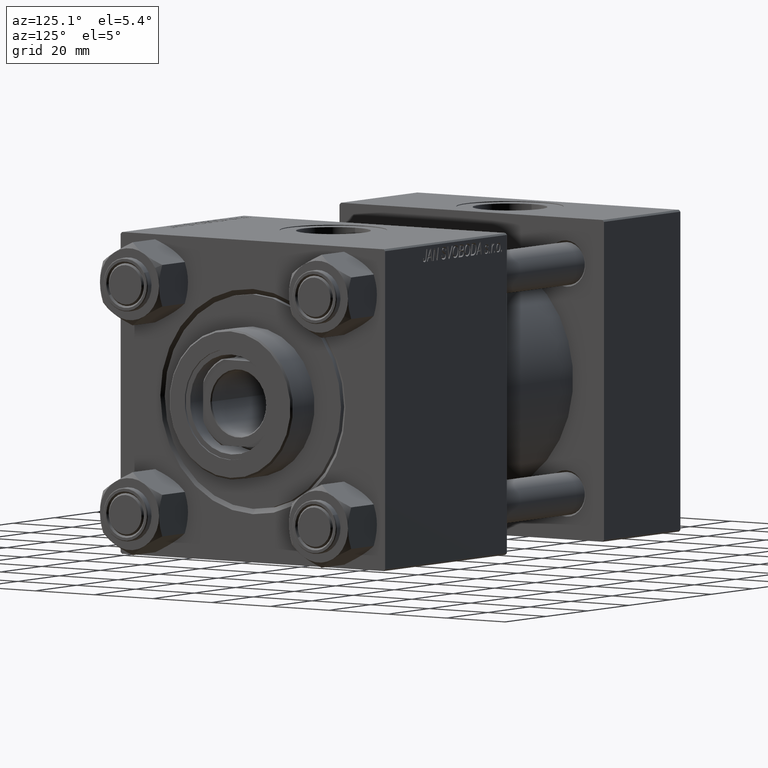
[diagram: clean part render]
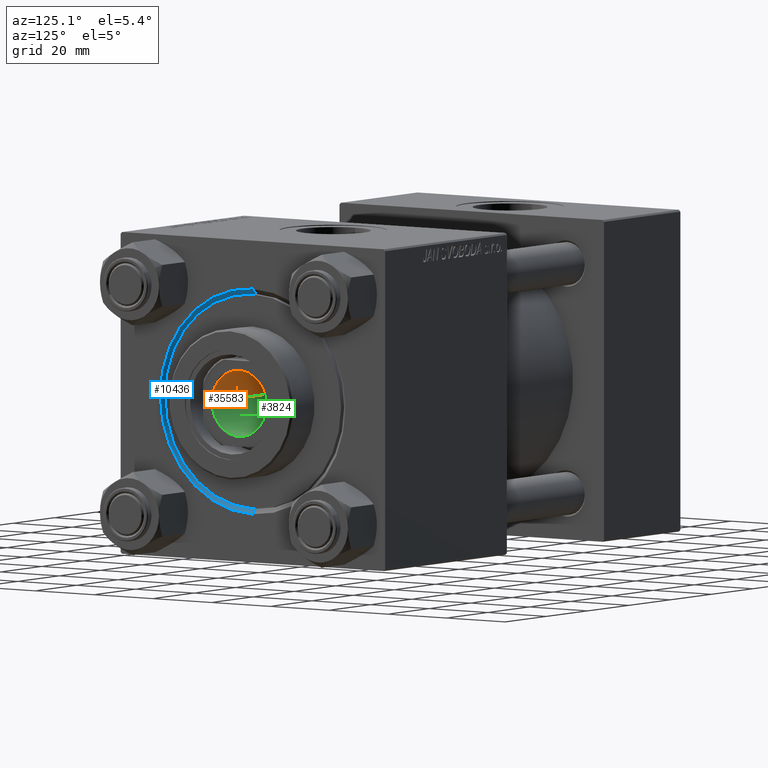
[diagram: same view with three faces highlighted in distinct colors, each labeled with its STEP entity id]
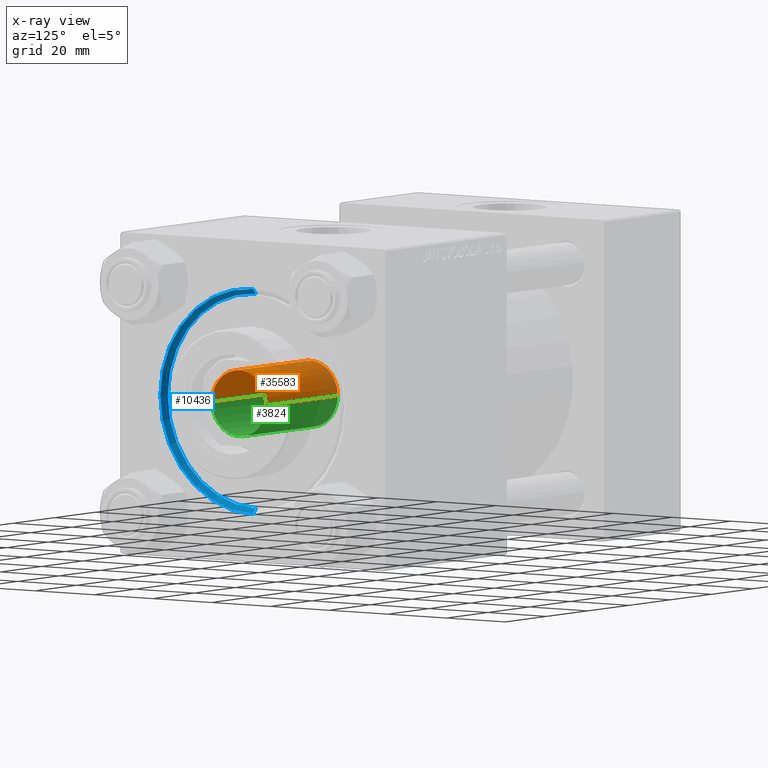
[diagram: x-ray of the same camera — body ghosted, the three highlighted faces saturated]
A machine part, auxiliary view with three faces highlighted in distinct colors.
The next image is the same camera in x-ray (body ghosted, the three faces saturated) — at least one of them is partly hidden behind the body in this view.
Their STEP definitions:

[orange] entity #35583 — the highlighted cylindrical surface (edge-blend (fillet) strip) has radius 9.25 mm, axis along (1, 0, -0).
#1181 = VERTEX_POINT ( 'NONE', #45784 ) ;
#1332 = ORIENTED_EDGE ( 'NONE', *, *, #35983, .F. ) ;
#2836 = CARTESIAN_POINT ( 'NONE',  ( 0.000000000000000000, 0.000000000000000000, 112.6999999999999744 ) ) ;
#5698 = CARTESIAN_POINT ( 'NONE',  ( 0.000000000000000000, 0.000000000000000000, 77.99999999999998579 ) ) ;
#5701 = DIRECTION ( 'NONE',  ( -0.000000000000000000, -0.000000000000000000, 1.000000000000000000 ) ) ;
#6137 = CARTESIAN_POINT ( 'NONE',  ( 9.249999999999994671, 0.000000000000000000, 112.6999999999999744 ) ) ;
#7879 = DIRECTION ( 'NONE',  ( -0.000000000000000000, -0.000000000000000000, 1.000000000000000000 ) ) ;
#9088 = EDGE_CURVE ( 'NONE', #21935, #1181, #28899, .T. ) ;
#9360 = ORIENTED_EDGE ( 'NONE', *, *, #9088, .T. ) ;
#10471 = AXIS2_PLACEMENT_3D ( 'NONE', #18603, #37486, #18098 ) ;
#18098 = DIRECTION ( 'NONE',  ( 1.000000000000000000, 0.000000000000000000, 0.000000000000000000 ) ) ;
#18186 = DIRECTION ( 'NONE',  ( 0.000000000000000000, 0.000000000000000000, 1.000000000000000000 ) ) ;
#18603 = CARTESIAN_POINT ( 'NONE',  ( 0.000000000000000000, 0.000000000000000000, 112.9999999999999858 ) ) ;
#19124 = CARTESIAN_POINT ( 'NONE',  ( -9.249999999999992895, 1.132798289211300712E-15, 77.99999999999998579 ) ) ;
#21067 = DIRECTION ( 'NONE',  ( 1.000000000000000000, 0.000000000000000000, 0.000000000000000000 ) ) ;
#21935 = VERTEX_POINT ( 'NONE', #19124 ) ;
#22135 = CYLINDRICAL_SURFACE ( 'NONE', #10471, 9.249999999999994671 ) ;
#24897 = VERTEX_POINT ( 'NONE', #42052 ) ;
#24899 = CIRCLE ( 'NONE', #47365, 9.249999999999992895 ) ;
#25926 = FACE_OUTER_BOUND ( 'NONE', #45438, .T. ) ;
#28329 = EDGE_CURVE ( 'NONE', #21935, #24897, #24899, .T. ) ;
#28899 = LINE ( 'NONE', #40196, #29668 ) ;
#29668 = VECTOR ( 'NONE', #5701, 1000.000000000000000 ) ;
#35465 = VECTOR ( 'NONE', #7879, 1000.000000000000000 ) ;
#35583 = ADVANCED_FACE ( 'NONE', ( #25926 ), #22135, .F. ) ;
#35983 = EDGE_CURVE ( 'NONE', #24897, #48921, #39351, .T. ) ;
#36480 = CIRCLE ( 'NONE', #39685, 9.249999999999994671 ) ;
#37089 = DIRECTION ( 'NONE',  ( 1.000000000000000000, 0.000000000000000000, 0.000000000000000000 ) ) ;
#37486 = DIRECTION ( 'NONE',  ( -0.000000000000000000, -0.000000000000000000, 1.000000000000000000 ) ) ;
#39351 = LINE ( 'NONE', #43373, #35465 ) ;
#39685 = AXIS2_PLACEMENT_3D ( 'NONE', #2836, #18186, #37089 ) ;
#40196 = CARTESIAN_POINT ( 'NONE',  ( -9.249999999999994671, 1.132798289211300909E-15, 112.9999999999999858 ) ) ;
#40213 = ORIENTED_EDGE ( 'NONE', *, *, #28329, .F. ) ;
#42052 = CARTESIAN_POINT ( 'NONE',  ( 9.249999999999992895, 0.000000000000000000, 77.99999999999998579 ) ) ;
#43373 = CARTESIAN_POINT ( 'NONE',  ( 9.249999999999994671, 0.000000000000000000, 112.9999999999999858 ) ) ;
#45438 = EDGE_LOOP ( 'NONE', ( #40213, #9360, #46821, #1332 ) ) ;
#45784 = CARTESIAN_POINT ( 'NONE',  ( -9.249999999999994671, 1.132798289211300909E-15, 112.6999999999999744 ) ) ;
#46821 = ORIENTED_EDGE ( 'NONE', *, *, #47106, .T. ) ;
#47106 = EDGE_CURVE ( 'NONE', #1181, #48921, #36480, .T. ) ;
#47365 = AXIS2_PLACEMENT_3D ( 'NONE', #5698, #47495, #21067 ) ;
#47495 = DIRECTION ( 'NONE',  ( -0.000000000000000000, -0.000000000000000000, 1.000000000000000000 ) ) ;
#48921 = VERTEX_POINT ( 'NONE', #6137 ) ;

[blue] entity #10436 — the highlighted conical surface has half-angle 45 deg.
#322 = ORIENTED_EDGE ( 'NONE', *, *, #4320, .F. ) ;
#326 = DIRECTION ( 'NONE',  ( 0.7071067811865474617, 0.000000000000000000, -0.7071067811865474617 ) ) ;
#386 = DIRECTION ( 'NONE',  ( 0.000000000000000000, 0.000000000000000000, 1.000000000000000000 ) ) ;
#852 = AXIS2_PLACEMENT_3D ( 'NONE', #3563, #22448, #6836 ) ;
#1330 = CIRCLE ( 'NONE', #34292, 31.50000000000000000 ) ;
#3563 = CARTESIAN_POINT ( 'NONE',  ( 141.5000000000000000, 0.000000000000000000, 0.000000000000000000 ) ) ;
#3663 = VERTEX_POINT ( 'NONE', #12004 ) ;
#3919 = CARTESIAN_POINT ( 'NONE',  ( 143.0000000000000000, 0.000000000000000000, 0.000000000000000000 ) ) ;
#4320 = EDGE_CURVE ( 'NONE', #39840, #40298, #31305, .T. ) ;
#6836 = DIRECTION ( 'NONE',  ( 0.000000000000000000, 0.000000000000000000, 1.000000000000000000 ) ) ;
#7197 = ORIENTED_EDGE ( 'NONE', *, *, #31450, .T. ) ;
#10120 = CARTESIAN_POINT ( 'NONE',  ( 141.5000000000000000, 3.673940397442059178E-15, 30.00000000000000000 ) ) ;
#10139 = VECTOR ( 'NONE', #326, 1000.000000000000114 ) ;
#10436 = ADVANCED_FACE ( 'NONE', ( #19723 ), #16795, .F. ) ;
#11699 = DIRECTION ( 'NONE',  ( -1.000000000000000000, -0.000000000000000000, -0.000000000000000000 ) ) ;
#12004 = CARTESIAN_POINT ( 'NONE',  ( 143.0000000000000000, 3.857637417314162689E-15, 31.50000000000000000 ) ) ;
#14509 = DIRECTION ( 'NONE',  ( 0.000000000000000000, 0.000000000000000000, -1.000000000000000000 ) ) ;
#16033 = EDGE_LOOP ( 'NONE', ( #47933, #7197, #31126, #322 ) ) ;
#16795 = CONICAL_SURFACE ( 'NONE', #26450, 30.00000000000000000, 0.7853981633974482790 ) ;
#18996 = CARTESIAN_POINT ( 'NONE',  ( 141.5000000000000000, 0.000000000000000000, -30.00000000000000000 ) ) ;
#19723 = FACE_OUTER_BOUND ( 'NONE', #16033, .T. ) ;
#21383 = EDGE_CURVE ( 'NONE', #40298, #3663, #1330, .T. ) ;
#22448 = DIRECTION ( 'NONE',  ( 1.000000000000000000, 0.000000000000000000, 0.000000000000000000 ) ) ;
#26450 = AXIS2_PLACEMENT_3D ( 'NONE', #33667, #49017, #14509 ) ;
#26771 = CARTESIAN_POINT ( 'NONE',  ( 141.5000000000000000, 0.000000000000000000, -30.00000000000000000 ) ) ;
#26850 = VERTEX_POINT ( 'NONE', #10120 ) ;
#30640 = CIRCLE ( 'NONE', #852, 30.00000000000000000 ) ;
#31126 = ORIENTED_EDGE ( 'NONE', *, *, #21383, .F. ) ;
#31305 = LINE ( 'NONE', #26771, #10139 ) ;
#31450 = EDGE_CURVE ( 'NONE', #26850, #3663, #37251, .T. ) ;
#33667 = CARTESIAN_POINT ( 'NONE',  ( 141.5000000000000000, 0.000000000000000000, 0.000000000000000000 ) ) ;
#34292 = AXIS2_PLACEMENT_3D ( 'NONE', #3919, #11699, #386 ) ;
#34675 = EDGE_CURVE ( 'NONE', #26850, #39840, #30640, .T. ) ;
#37251 = LINE ( 'NONE', #41758, #46561 ) ;
#37762 = CARTESIAN_POINT ( 'NONE',  ( 143.0000000000000000, 0.000000000000000000, -31.50000000000000000 ) ) ;
#39840 = VERTEX_POINT ( 'NONE', #18996 ) ;
#40298 = VERTEX_POINT ( 'NONE', #37762 ) ;
#41015 = DIRECTION ( 'NONE',  ( 0.7071067811865474617, 8.659560562354932858E-17, 0.7071067811865474617 ) ) ;
#41758 = CARTESIAN_POINT ( 'NONE',  ( 141.5000000000000000, 3.673940397442059178E-15, 30.00000000000000000 ) ) ;
#46561 = VECTOR ( 'NONE', #41015, 1000.000000000000114 ) ;
#47933 = ORIENTED_EDGE ( 'NONE', *, *, #34675, .F. ) ;
#49017 = DIRECTION ( 'NONE',  ( 1.000000000000000000, 0.000000000000000000, 0.000000000000000000 ) ) ;

[green] entity #3824 — the highlighted cylindrical surface (edge-blend (fillet) strip) has radius 9.25 mm, axis along (1, 0, -0).
#1097 = CIRCLE ( 'NONE', #15529, 9.249999999999994671 ) ;
#1181 = VERTEX_POINT ( 'NONE', #45784 ) ;
#1497 = ORIENTED_EDGE ( 'NONE', *, *, #35983, .T. ) ;
#2158 = CARTESIAN_POINT ( 'NONE',  ( 0.000000000000000000, 0.000000000000000000, 77.99999999999998579 ) ) ;
#3824 = ADVANCED_FACE ( 'NONE', ( #33160 ), #39693, .F. ) ;
#5204 = CARTESIAN_POINT ( 'NONE',  ( 0.000000000000000000, 0.000000000000000000, 112.9999999999999858 ) ) ;
#5701 = DIRECTION ( 'NONE',  ( -0.000000000000000000, -0.000000000000000000, 1.000000000000000000 ) ) ;
#6137 = CARTESIAN_POINT ( 'NONE',  ( 9.249999999999994671, 0.000000000000000000, 112.6999999999999744 ) ) ;
#7879 = DIRECTION ( 'NONE',  ( -0.000000000000000000, -0.000000000000000000, 1.000000000000000000 ) ) ;
#7983 = CIRCLE ( 'NONE', #36146, 9.249999999999992895 ) ;
#8191 = ORIENTED_EDGE ( 'NONE', *, *, #9088, .F. ) ;
#9088 = EDGE_CURVE ( 'NONE', #21935, #1181, #28899, .T. ) ;
#9418 = EDGE_LOOP ( 'NONE', ( #8191, #15719, #1497, #22809 ) ) ;
#11653 = EDGE_CURVE ( 'NONE', #24897, #21935, #7983, .T. ) ;
#15529 = AXIS2_PLACEMENT_3D ( 'NONE', #25221, #33496, #25701 ) ;
#15719 = ORIENTED_EDGE ( 'NONE', *, *, #11653, .F. ) ;
#17539 = DIRECTION ( 'NONE',  ( -0.000000000000000000, -0.000000000000000000, 1.000000000000000000 ) ) ;
#19124 = CARTESIAN_POINT ( 'NONE',  ( -9.249999999999992895, 1.132798289211300712E-15, 77.99999999999998579 ) ) ;
#21935 = VERTEX_POINT ( 'NONE', #19124 ) ;
#22809 = ORIENTED_EDGE ( 'NONE', *, *, #46475, .T. ) ;
#24897 = VERTEX_POINT ( 'NONE', #42052 ) ;
#25221 = CARTESIAN_POINT ( 'NONE',  ( 0.000000000000000000, 0.000000000000000000, 112.6999999999999744 ) ) ;
#25701 = DIRECTION ( 'NONE',  ( 1.000000000000000000, 0.000000000000000000, 0.000000000000000000 ) ) ;
#28899 = LINE ( 'NONE', #40196, #29668 ) ;
#29611 = DIRECTION ( 'NONE',  ( -0.000000000000000000, -0.000000000000000000, 1.000000000000000000 ) ) ;
#29668 = VECTOR ( 'NONE', #5701, 1000.000000000000000 ) ;
#33160 = FACE_OUTER_BOUND ( 'NONE', #9418, .T. ) ;
#33496 = DIRECTION ( 'NONE',  ( 0.000000000000000000, 0.000000000000000000, 1.000000000000000000 ) ) ;
#35465 = VECTOR ( 'NONE', #7879, 1000.000000000000000 ) ;
#35983 = EDGE_CURVE ( 'NONE', #24897, #48921, #39351, .T. ) ;
#36146 = AXIS2_PLACEMENT_3D ( 'NONE', #2158, #29611, #44923 ) ;
#36671 = DIRECTION ( 'NONE',  ( 1.000000000000000000, 0.000000000000000000, 0.000000000000000000 ) ) ;
#38277 = AXIS2_PLACEMENT_3D ( 'NONE', #5204, #17539, #36671 ) ;
#39351 = LINE ( 'NONE', #43373, #35465 ) ;
#39693 = CYLINDRICAL_SURFACE ( 'NONE', #38277, 9.249999999999994671 ) ;
#40196 = CARTESIAN_POINT ( 'NONE',  ( -9.249999999999994671, 1.132798289211300909E-15, 112.9999999999999858 ) ) ;
#42052 = CARTESIAN_POINT ( 'NONE',  ( 9.249999999999992895, 0.000000000000000000, 77.99999999999998579 ) ) ;
#43373 = CARTESIAN_POINT ( 'NONE',  ( 9.249999999999994671, 0.000000000000000000, 112.9999999999999858 ) ) ;
#44923 = DIRECTION ( 'NONE',  ( 1.000000000000000000, 0.000000000000000000, 0.000000000000000000 ) ) ;
#45784 = CARTESIAN_POINT ( 'NONE',  ( -9.249999999999994671, 1.132798289211300909E-15, 112.6999999999999744 ) ) ;
#46475 = EDGE_CURVE ( 'NONE', #48921, #1181, #1097, .T. ) ;
#48921 = VERTEX_POINT ( 'NONE', #6137 ) ;